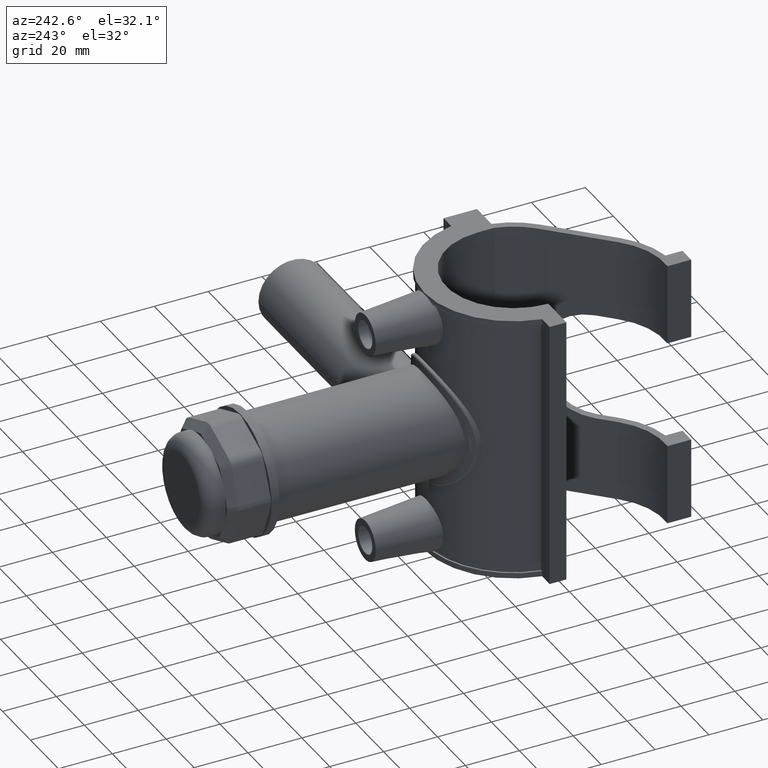
[diagram: clean part render]
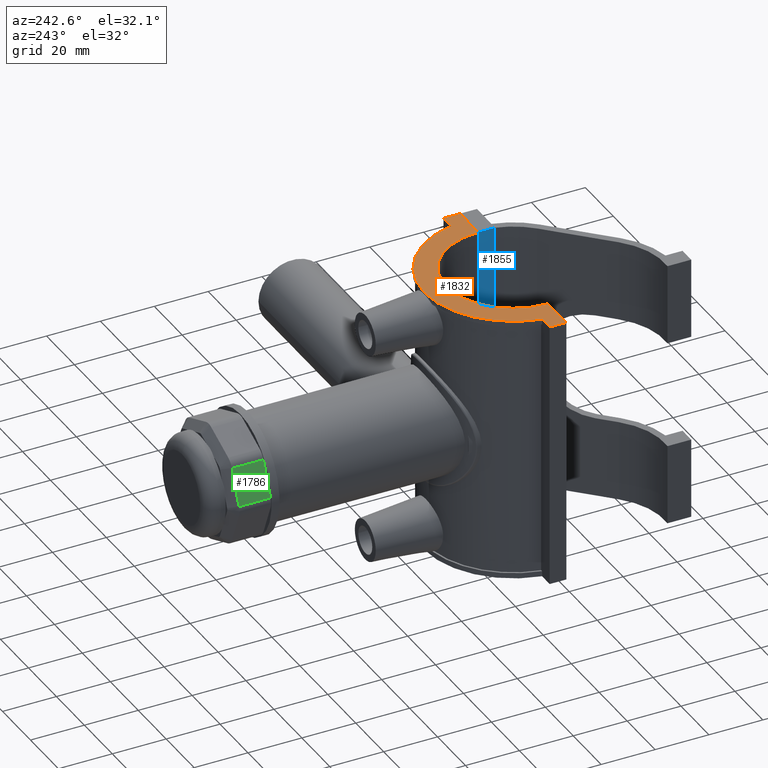
[diagram: same view with three faces highlighted in distinct colors, each labeled with its STEP entity id]
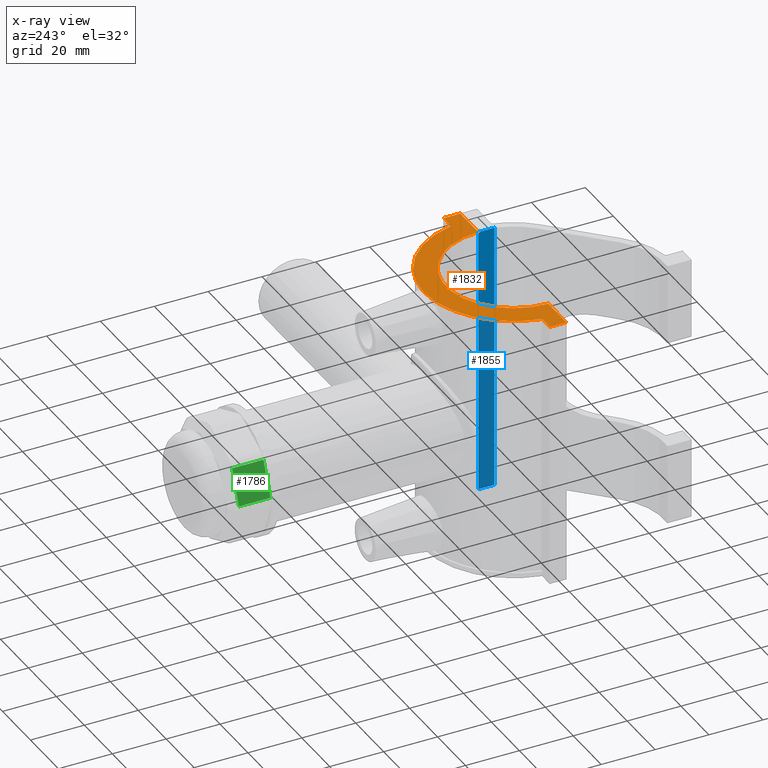
[diagram: x-ray of the same camera — body ghosted, the three highlighted faces saturated]
A machine part, auxiliary view with three faces highlighted in distinct colors.
The next image is the same camera in x-ray (body ghosted, the three faces saturated) — at least one of them is partly hidden behind the body in this view.
Their STEP definitions:

[orange] entity #1832 — the highlighted planar face has unit normal (0, 0, 1).
#103=LINE('',#3355,#247);
#110=LINE('',#3433,#254);
#112=LINE('',#3501,#256);
#119=LINE('',#3515,#263);
#120=LINE('',#3517,#264);
#121=LINE('',#3518,#265);
#247=VECTOR('',#2370,5.44450891170585);
#254=VECTOR('',#2399,5.44450891170585);
#256=VECTOR('',#2443,13.00005000005);
#263=VECTOR('',#2452,13.00005000005);
#264=VECTOR('',#2455,6.19999999999999);
#265=VECTOR('',#2456,6.19999999999999);
#374=PLANE('',#2015);
#448=CIRCLE('',#1991,33.15);
#458=CIRCLE('',#2016,25.);
#580=FACE_OUTER_BOUND('',#713,.T.);
#713=EDGE_LOOP('',(#1545,#1546,#1547,#1548,#1549,#1550,#1551,#1552));
#867=VERTEX_POINT('',#3352);
#868=VERTEX_POINT('',#3354);
#878=VERTEX_POINT('',#3425);
#880=VERTEX_POINT('',#3431);
#891=VERTEX_POINT('',#3499);
#892=VERTEX_POINT('',#3500);
#896=VERTEX_POINT('',#3509);
#898=VERTEX_POINT('',#3513);
#1090=EDGE_CURVE('',#868,#867,#103,.T.);
#1105=EDGE_CURVE('',#867,#878,#448,.T.);
#1108=EDGE_CURVE('',#878,#880,#110,.T.);
#1121=EDGE_CURVE('',#891,#892,#112,.T.);
#1128=EDGE_CURVE('',#896,#898,#119,.T.);
#1129=EDGE_CURVE('',#898,#868,#120,.T.);
#1130=EDGE_CURVE('',#880,#891,#121,.T.);
#1131=EDGE_CURVE('',#892,#896,#458,.T.);
#1545=ORIENTED_EDGE('',*,*,#1128,.T.);
#1546=ORIENTED_EDGE('',*,*,#1129,.T.);
#1547=ORIENTED_EDGE('',*,*,#1090,.T.);
#1548=ORIENTED_EDGE('',*,*,#1105,.T.);
#1549=ORIENTED_EDGE('',*,*,#1108,.T.);
#1550=ORIENTED_EDGE('',*,*,#1130,.T.);
#1551=ORIENTED_EDGE('',*,*,#1121,.T.);
#1552=ORIENTED_EDGE('',*,*,#1131,.T.);
#1832=ADVANCED_FACE('',(#580),#374,.T.);
#1991=AXIS2_PLACEMENT_3D('',#3427,#2393,#2394);
#2015=AXIS2_PLACEMENT_3D('',#3516,#2453,#2454);
#2016=AXIS2_PLACEMENT_3D('',#3519,#2457,#2458);
#2370=DIRECTION('',(-1.,0.,0.));
#2393=DIRECTION('center_axis',(0.,0.,1.));
#2394=DIRECTION('ref_axis',(0.982066096177802,0.188536953242836,0.));
#2399=DIRECTION('',(-1.,0.,0.));
#2443=DIRECTION('',(1.,-4.56506177888633E-19,0.));
#2452=DIRECTION('',(1.,-4.56506177888633E-19,0.));
#2453=DIRECTION('center_axis',(0.,0.,1.));
#2454=DIRECTION('ref_axis',(1.,0.,0.));
#2455=DIRECTION('',(0.,1.,0.));
#2456=DIRECTION('',(0.,-1.,0.));
#2457=DIRECTION('center_axis',(0.,0.,-1.));
#2458=DIRECTION('ref_axis',(-1.,0.,0.));
#3352=CARTESIAN_POINT('',(32.5554910882941,6.25,50.));
#3354=CARTESIAN_POINT('',(38.,6.25,50.));
#3355=CARTESIAN_POINT('',(38.,6.25,50.));
#3425=CARTESIAN_POINT('',(-32.5554910882941,6.25,50.));
#3427=CARTESIAN_POINT('Origin',(0.,0.,50.));
#3431=CARTESIAN_POINT('',(-38.,6.25,50.));
#3433=CARTESIAN_POINT('',(-31.8933770554327,6.25,50.));
#3499=CARTESIAN_POINT('',(-38.,0.0500000000000078,50.));
#3500=CARTESIAN_POINT('',(-24.99994999995,0.0500000000000078,50.));
#3501=CARTESIAN_POINT('',(1.33374081068519,0.0500000000000078,50.));
#3509=CARTESIAN_POINT('',(24.99994999995,0.0500000000000078,50.));
#3513=CARTESIAN_POINT('',(38.,0.0500000000000078,50.));
#3515=CARTESIAN_POINT('',(1.33374081068519,0.0500000000000078,50.));
#3516=CARTESIAN_POINT('Origin',(-35.3325183786296,2.35938787074073E-17,
50.));
#3517=CARTESIAN_POINT('',(38.,-6.25,50.));
#3518=CARTESIAN_POINT('',(-38.,6.25,50.));
#3519=CARTESIAN_POINT('Origin',(0.,0.,50.));

[blue] entity #1855 — the highlighted planar face has unit normal (-1, 0, 0).
#161=LINE('',#3630,#305);
#164=LINE('',#3636,#308);
#165=LINE('',#3638,#309);
#166=LINE('',#3639,#310);
#305=VECTOR('',#2568,100.);
#308=VECTOR('',#2573,5.90684651941753);
#309=VECTOR('',#2574,100.);
#310=VECTOR('',#2575,5.90684651941753);
#390=PLANE('',#2052);
#603=FACE_OUTER_BOUND('',#738,.T.);
#738=EDGE_LOOP('',(#1667,#1668,#1669,#1670));
#932=VERTEX_POINT('',#3626);
#934=VERTEX_POINT('',#3629);
#936=VERTEX_POINT('',#3635);
#937=VERTEX_POINT('',#3637);
#1184=EDGE_CURVE('',#934,#932,#161,.T.);
#1187=EDGE_CURVE('',#936,#932,#164,.T.);
#1188=EDGE_CURVE('',#937,#936,#165,.T.);
#1189=EDGE_CURVE('',#934,#937,#166,.T.);
#1667=ORIENTED_EDGE('',*,*,#1187,.F.);
#1668=ORIENTED_EDGE('',*,*,#1188,.F.);
#1669=ORIENTED_EDGE('',*,*,#1189,.F.);
#1670=ORIENTED_EDGE('',*,*,#1184,.T.);
#1855=ADVANCED_FACE('',(#603),#390,.T.);
#2052=AXIS2_PLACEMENT_3D('',#3634,#2571,#2572);
#2568=DIRECTION('',(0.,0.,-1.));
#2571=DIRECTION('center_axis',(-1.,0.,0.));
#2572=DIRECTION('ref_axis',(0.,1.,0.));
#2573=DIRECTION('',(0.,1.,0.));
#2574=DIRECTION('',(0.,0.,-1.));
#2575=DIRECTION('',(0.,-1.,0.));
#3626=CARTESIAN_POINT('',(24.99994999995,0.0500000000000078,-50.));
#3629=CARTESIAN_POINT('',(24.99994999995,0.0500000000000078,50.));
#3630=CARTESIAN_POINT('',(24.99994999995,0.0500000000000078,50.));
#3634=CARTESIAN_POINT('Origin',(24.99994999995,-5.85684651941752,50.));
#3635=CARTESIAN_POINT('',(24.99994999995,-5.85684651941752,-50.));
#3636=CARTESIAN_POINT('',(24.99994999995,-16.5082062169007,-50.));
#3637=CARTESIAN_POINT('',(24.99994999995,-5.85684651941752,50.));
#3638=CARTESIAN_POINT('',(24.99994999995,-5.85684651941752,50.));
#3639=CARTESIAN_POINT('',(24.99994999995,0.0500000000000078,50.));

[green] entity #1786 — the highlighted planar face has unit normal (-0.9239, -0, 0.3827).
#65=LINE('',#2990,#209);
#76=LINE('',#3037,#220);
#77=LINE('',#3041,#221);
#78=LINE('',#3042,#222);
#209=VECTOR('',#2192,13.0786188326981);
#220=VECTOR('',#2255,11.7);
#221=VECTOR('',#2260,11.7);
#222=VECTOR('',#2261,13.0786188326981);
#349=PLANE('',#1939);
#534=FACE_OUTER_BOUND('',#651,.T.);
#651=EDGE_LOOP('',(#1348,#1349,#1350,#1351));
#824=VERTEX_POINT('',#2978);
#828=VERTEX_POINT('',#2988);
#838=VERTEX_POINT('',#3036);
#839=VERTEX_POINT('',#3040);
#1015=EDGE_CURVE('',#828,#824,#65,.T.);
#1039=EDGE_CURVE('',#824,#838,#76,.T.);
#1041=EDGE_CURVE('',#839,#828,#77,.T.);
#1042=EDGE_CURVE('',#838,#839,#78,.T.);
#1348=ORIENTED_EDGE('',*,*,#1015,.F.);
#1349=ORIENTED_EDGE('',*,*,#1041,.F.);
#1350=ORIENTED_EDGE('',*,*,#1042,.F.);
#1351=ORIENTED_EDGE('',*,*,#1039,.F.);
#1786=ADVANCED_FACE('',(#534),#349,.T.);
#1939=AXIS2_PLACEMENT_3D('',#3039,#2258,#2259);
#2192=DIRECTION('',(0.38268343236509,-2.82856528071925E-16,0.923879532511287));
#2255=DIRECTION('',(-2.27753888853756E-32,-1.,-4.02802004399149E-16));
#2258=DIRECTION('center_axis',(-0.923879532511287,-1.54145653607004E-16,
0.38268343236509));
#2259=DIRECTION('ref_axis',(-0.38268343236509,0.,-0.923879532511287));
#2260=DIRECTION('',(1.74315279842105E-32,1.,4.02802004399149E-16));
#2261=DIRECTION('',(-0.38268343236509,2.82856528071925E-16,-0.923879532511287));
#2978=CARTESIAN_POINT('',(-16.7024659156029,113.14,13.9964854148719));
#2988=CARTESIAN_POINT('',(-21.7074366610945,113.14,1.91341716182547));
#2990=CARTESIAN_POINT('',(-14.3754464171835,113.14,19.6144074478625));
#3036=CARTESIAN_POINT('',(-16.7024659156029,101.44,13.9964854148719));
#3037=CARTESIAN_POINT('',(-16.7024659156029,116.14,13.9964854148719));
#3039=CARTESIAN_POINT('Origin',(-15.9099025766973,116.14,15.9099025766973));
#3040=CARTESIAN_POINT('',(-21.7074366610944,101.44,1.91341716182547));
#3041=CARTESIAN_POINT('',(-21.7074366610945,116.14,1.91341716182547));
#3042=CARTESIAN_POINT('',(-14.1367978785331,101.44,20.1905559865129));